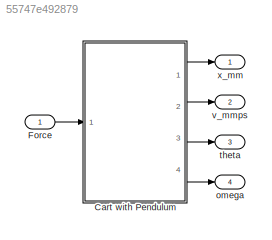
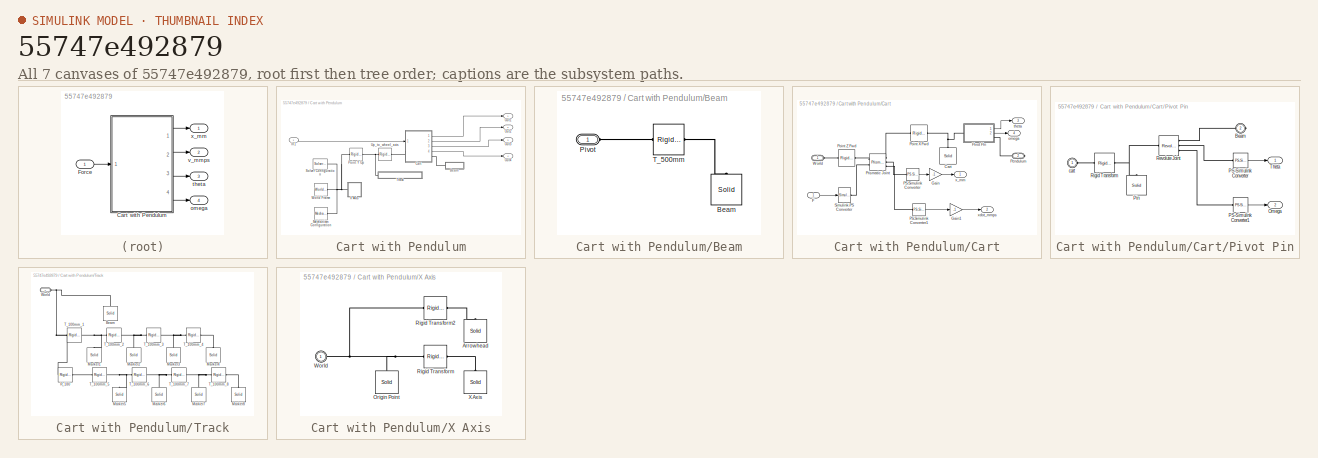
[diagram: thumbnail index - all 7 canvases of the model, root first then tree order]
MODEL slx_55747e492879
KIND model
CONFIG PreLoadFcn = Tend = 8
BLOCK [SubSystem] Cart with Pendulum
  Ports = [1, 4]
  RequestExecContextInheritance = off
BLOCK [SubSystem] Cart with Pendulum/Beam
  Ports = [0, 0, 0, 0, 0, 1]
  RequestExecContextInheritance = off
BLOCK [Reference] Cart with Pendulum/Beam/Beam  REF=sm_lib/Body Elements/Solid
  BlockFunction = simmechanics.library.body_elements.solid
  BrickDimensionUnits = mm
  BrickDimensions = [1000 20 50]
  CenterOfMass = [0 0 0]
  CenterOfMassUnits = m
  ClassName = Solid
  CylinderLength = 1
  CylinderLengthUnits = m
  CylinderRadius = 1
  CylinderRadiusUnits = m
  Density = 1000
  DensityBased = on
  DensityUnits = kg/(m^3)
  EllipsoidRadii = [1 1 1]
  EllipsoidRadiiUnits = m
  ExtGeomFileType = STL
  ExtGeomFileUnits = m
  ExtrusionCrossSection = [1 1; -1 1; -1 -1; 1 -1]
  ExtrusionCrossSectionUnits = m
  ExtrusionLength = 1
  ExtrusionLengthUnits = m
  GeometryShape = Brick
  GraphicAmbientColor = [0.15 0.15 0.15 1.0]
  GraphicDiffuseColor = [0.0 0.6 0.6]
  GraphicEmissiveColor = [0.0 0.0 0.0 1.0]
  GraphicOpacity = 1.0
  GraphicShininess = 75
  GraphicSpecularColor = [0.5 0.5 0.5 1.0]
  GraphicType = FromGeometry
  GraphicVisPropType = SimpleVisualProperties
  InertiaType = CalculateFromGeometry
  MarkerShape = Sphere
  MarkerSize = 10
  MarkerSizeUnits = m
  Mass = 1
  MassUnits = kg
  MomentsOfInertia = [1 1 1]
  MomentsOfInertiaUnits = kg*m^2
  PolygonNumSides = 3
  PolygonOuterRadius = 1
  PolygonOuterRadiusUnits = m
  Ports = [0, 0, 0, 0, 0, 0, 1]
  ProductsOfInertia = [0 0 0]
  ProductsOfInertiaUnits = kg*m^2
  RectangleSize = [1 1]
  RectangleSizeUnits = m
  RevolutionAngle = 180
  RevolutionAngleUnits = deg
  RevolutionCrossSection = [1 1; 1 -1; 2 -1; 2 1]
  RevolutionCrossSectionUnits = m
  RevolutionExtent = Full
  SourceBlock = sm_lib/Body Elements/Solid
  SourceType = Solid
  SphereRadius = 1
  SphereRadiusUnits = m
BLOCK [PMIOPort] Cart with Pendulum/Beam/Pivot
  Port = 1
  Side = Left
BLOCK [Reference] Cart with Pendulum/Beam/T_500mm  REF=sm_lib/Frames and
Transforms/Rigid
Transform
  BaseAlignAxisA = +Y
  BaseAlignAxisB = +Z
  BlockFunction = simmechanics.library.frames_transforms.rigid_transform
  ClassName = RigidTransform
  FollAlignAxisA = +X
  FollAlignAxisB = +Y
  Ports = [0, 0, 0, 0, 0, 1, 1]
  RotationAngle = 0
  RotationAngleUnits = deg
  RotationArbitraryAxis = [0 0 1]
  RotationMethod = None
  RotationStandardAxis = +Z
  SourceBlock = sm_lib/Frames and\nTransforms/Rigid\nTransform
  SourceType = Rigid\nTransform
  TranslationCartesianOffset = [0 0 0]
  TranslationLengthUnit = mm
  TranslationMethod = StandardAxis
  TranslationROffset = 0
  TranslationROffsetUnits = m
  TranslationStandardAxis = +X
  TranslationStandardOffset = 500
  TranslationThetaOffset = 0
  TranslationThetaOffsetUnits = deg
  TranslationZOffset = 0
  TranslationZOffsetUnits = m
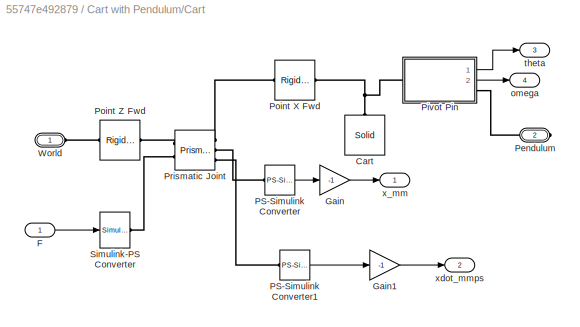
BLOCK [SubSystem] Cart with Pendulum/Cart
  Ports = [1, 4, 0, 0, 0, 1, 1]
  RequestExecContextInheritance = off
BLOCK [Reference] Cart with Pendulum/Cart/Cart  REF=sm_lib/Body Elements/Solid
  BlockFunction = simmechanics.library.body_elements.solid
  BrickDimensionUnits = mm
  BrickDimensions = [100 50 75]
  CenterOfMass = [0 0 0]
  CenterOfMassUnits = m
  ClassName = Solid
  CylinderLength = 40
  CylinderLengthUnits = mm
  CylinderRadius = 20
  CylinderRadiusUnits = mm
  Density = 1000
  DensityBased = on
  DensityUnits = kg/(m^3)
  EllipsoidRadii = [1 1 1]
  EllipsoidRadiiUnits = m
  ExtGeomFileType = STL
  ExtGeomFileUnits = m
  ExtrusionCrossSection = [1 1; -1 1; -1 -1; 1 -1]
  ExtrusionCrossSectionUnits = m
  ExtrusionLength = 1
  ExtrusionLengthUnits = m
  GeometryShape = Brick
  GraphicAmbientColor = [0.15 0.15 0.15 1.0]
  GraphicDiffuseColor = [0.5 0.5 0.5]
  GraphicEmissiveColor = [0.0 0.0 0.0 1.0]
  GraphicOpacity = 1.0
  GraphicShininess = 75
  GraphicSpecularColor = [0.5 0.5 0.5 1.0]
  GraphicType = FromGeometry
  GraphicVisPropType = SimpleVisualProperties
  InertiaType = CalculateFromGeometry
  MarkerShape = Sphere
  MarkerSize = 10
  MarkerSizeUnits = m
  Mass = 1
  MassUnits = kg
  MomentsOfInertia = [1 1 1]
  MomentsOfInertiaUnits = kg*m^2
  PolygonNumSides = 3
  PolygonOuterRadius = 1
  PolygonOuterRadiusUnits = m
  Ports = [0, 0, 0, 0, 0, 0, 1]
  ProductsOfInertia = [0 0 0]
  ProductsOfInertiaUnits = kg*m^2
  RectangleSize = [1 1]
  RectangleSizeUnits = m
  RevolutionAngle = 180
  RevolutionAngleUnits = deg
  RevolutionCrossSection = [1 1; 1 -1; 2 -1; 2 1]
  RevolutionCrossSectionUnits = m
  RevolutionExtent = Full
  SourceBlock = sm_lib/Body Elements/Solid
  SourceType = Solid
  SphereRadius = 1
  SphereRadiusUnits = m
BLOCK [Inport] Cart with Pendulum/Cart/F
  IconDisplay = Port number
BLOCK [Gain] Cart with Pendulum/Cart/Gain
  Gain = -1
  OutDataTypeStr = Inherit: Inherit via internal rule
  ParamDataTypeStr = Inherit: Inherit via internal rule
  SaturateOnIntegerOverflow = off
BLOCK [Gain] Cart with Pendulum/Cart/Gain1
  Gain = -1
  OutDataTypeStr = Inherit: Inherit via internal rule
  ParamDataTypeStr = Inherit: Inherit via internal rule
  SaturateOnIntegerOverflow = off
BLOCK [Reference] Cart with Pendulum/Cart/PS-Simulink Converter  REF=nesl_utility/PS-Simulink
Converter
  AffineConversion = off
  Frequencies = []
  LeftPortType = input
  PhysicalDomain = network_engine_domain
  Ports = [0, 1, 0, 0, 0, 1]
  PseudoPeriodic = off
  RightPortType = output
  SourceBlock = nesl_utility/PS-Simulink\nConverter
  SourceType = PS-Simulink\nConverter
  SubClassName = ps_output
  Unit = mm
BLOCK [Reference] Cart with Pendulum/Cart/PS-Simulink Converter1  REF=nesl_utility/PS-Simulink
Converter
  AffineConversion = off
  Frequencies = []
  LeftPortType = input
  PhysicalDomain = network_engine_domain
  Ports = [0, 1, 0, 0, 0, 1]
  PseudoPeriodic = off
  RightPortType = output
  SourceBlock = nesl_utility/PS-Simulink\nConverter
  SourceType = PS-Simulink\nConverter
  SubClassName = ps_output
  Unit = mm/s
BLOCK [PMIOPort] Cart with Pendulum/Cart/Pendulum
  Port = 2
  Side = Right
BLOCK [SubSystem] Cart with Pendulum/Cart/Pivot Pin
  Ports = [0, 2, 0, 0, 0, 1, 1]
  RequestExecContextInheritance = off
BLOCK [PMIOPort] Cart with Pendulum/Cart/Pivot Pin/Beam
  Port = 2
  Side = Right
BLOCK [Outport] Cart with Pendulum/Cart/Pivot Pin/Omega
  IconDisplay = Port number
  Port = 2
BLOCK [Reference] Cart with Pendulum/Cart/Pivot Pin/PS-Simulink Converter  REF=nesl_utility/PS-Simulink
Converter
  AffineConversion = off
  Frequencies = []
  LeftPortType = input
  PhysicalDomain = network_engine_domain
  Ports = [0, 1, 0, 0, 0, 1]
  PseudoPeriodic = off
  RightPortType = output
  SourceBlock = nesl_utility/PS-Simulink\nConverter
  SourceType = PS-Simulink\nConverter
  SubClassName = ps_output
  Unit = rad
BLOCK [Reference] Cart with Pendulum/Cart/Pivot Pin/PS-Simulink Converter1  REF=nesl_utility/PS-Simulink
Converter
  AffineConversion = off
  Frequencies = []
  LeftPortType = input
  PhysicalDomain = network_engine_domain
  Ports = [0, 1, 0, 0, 0, 1]
  PseudoPeriodic = off
  RightPortType = output
  SourceBlock = nesl_utility/PS-Simulink\nConverter
  SourceType = PS-Simulink\nConverter
  SubClassName = ps_output
  Unit = rad/s
BLOCK [Reference] Cart with Pendulum/Cart/Pivot Pin/Pin  REF=sm_lib/Body Elements/Solid
  BlockFunction = simmechanics.library.body_elements.solid
  BrickDimensionUnits = m
  BrickDimensions = [1 1 1]
  CenterOfMass = [0 0 0]
  CenterOfMassUnits = m
  ClassName = Solid
  CylinderLength = 100
  CylinderLengthUnits = mm
  CylinderRadius = 5
  CylinderRadiusUnits = mm
  Density = 1000
  DensityBased = on
  DensityUnits = kg/(m^3)
  EllipsoidRadii = [1 1 1]
  EllipsoidRadiiUnits = m
  ExtGeomFileName = D:\\\\\\\\\\\\\\\\\\\\\\\\\\\\\\\\\\\\\\\\\\\\\\\\\\\\\\\\\\\\\\\\\\\\\\\\\\\\\\\\\\\\\\\\\\\\\\\\\\\\\\\\\\\\\\\\\\\\\\\\\\\\\\\\\\\\\\\\\\\\\\\\\\\\\\\\\\\\\\\\\\\\\\\\\\\\\\\\\\\\\\\\\\\\\\\\\\\\\\\\\\\\\\\\\\\\\\\\\\\\\\\\\\\\\\\\\\\\\\\\\\\\\\\\\\\\\\\\\\\\\\\\\\\\\\\\\\\\\\\\\\\\\\\\\\\\\\\\\\\\\\\\\\\\\\\\\\\\\\\\\\\\\\\\\\\\\\\\\\\\\\\\\\\\\\\\\\\\\\\\\\\\\\\\\\\\\\\\\\\\\\\\\\\\\\\\\\\\\\...<+1681ch>
  ExtGeomFileType = STL
  ExtGeomFileUnits = mm
  ExtrusionCrossSection = [1 1; -1 1; -1 -1; 1 -1]
  ExtrusionCrossSectionUnits = m
  ExtrusionLength = 1
  ExtrusionLengthUnits = m
  GeometryShape = Cylinder
  GraphicAmbientColor = [0.15 0.15 0.15 1.0]
  GraphicDiffuseColor = [1.0 0.0 0.0]
  GraphicEmissiveColor = [0.0 0.0 0.0 1.0]
  GraphicOpacity = 1.0
  GraphicShininess = 75
  GraphicSpecularColor = [0.5 0.5 0.5 1.0]
  GraphicType = FromGeometry
  GraphicVisPropType = SimpleVisualProperties
  InertiaType = CalculateFromGeometry
  MarkerShape = Sphere
  MarkerSize = 10
  MarkerSizeUnits = m
  Mass = 1
  MassUnits = kg
  MomentsOfInertia = [1 1 1]
  MomentsOfInertiaUnits = kg*m^2
  PolygonNumSides = 3
  PolygonOuterRadius = 1
  PolygonOuterRadiusUnits = m
  Ports = [0, 0, 0, 0, 0, 0, 1]
  ProductsOfInertia = [0 0 0]
  ProductsOfInertiaUnits = kg*m^2
  RectangleSize = [1 1]
  RectangleSizeUnits = m
  RevolutionAngle = 180
  RevolutionAngleUnits = deg
  RevolutionCrossSection = [1 1; 1 -1; 2 -1; 2 1]
  RevolutionCrossSectionUnits = m
  RevolutionExtent = Full
  SourceBlock = sm_lib/Body Elements/Solid
  SourceType = Solid
  SphereRadius = 5
  SphereRadiusUnits = mm
BLOCK [Reference] Cart with Pendulum/Cart/Pivot Pin/Revolute Joint  REF=sm_lib/Joints/Revolute Joint
  BlockFunction = simmechanics.library.joints.revolute_joint
  ClassName = RevoluteJoint
  CompositeWrenchDir = FollowerOnBase
  CompositeWrenchFrame = BaseFrame
  DampingCoefficient = 0
  DampingCoefficientUnits = N*m/(deg/s)
  EquilibriumPosition = 0
  EquilibriumPositionUnits = deg
  MotionActuationMode = ComputedMotion
  Ports = [0, 0, 0, 0, 0, 1, 3]
  PositionTargetPriority = High
  PositionTargetSpecify = on
  PositionTargetValue = 85
  PositionTargetValueUnits = deg
  SenseAcceleration = off
  SenseConstraintForce = off
  SenseConstraintForceX = off
  SenseConstraintForceY = off
  SenseConstraintForceZ = off
  SenseConstraintTorque = off
  SenseConstraintTorqueX = off
  SenseConstraintTorqueY = off
  SenseConstraintTorqueZ = off
  SensePosition = on
  SenseTorqueForce = off
  SenseTotalForce = off
  SenseTotalForceX = off
  SenseTotalForceY = off
  SenseTotalForceZ = off
  SenseTotalTorque = off
  SenseTotalTorqueX = off
  SenseTotalTorqueY = off
  SenseTotalTorqueZ = off
  SenseVelocity = on
  SourceBlock = sm_lib/Joints/Revolute Joint
  SourceType = Revolute Joint
  SpringStiffness = 0
  SpringStiffnessUnits = N*m/deg
  TorqueActuationMode = NoTorque
  VelocityTargetPriority = High
  VelocityTargetSpecify = off
  VelocityTargetValue = 0
  VelocityTargetValueUnits = deg/s
BLOCK [Reference] Cart with Pendulum/Cart/Pivot Pin/Rigid Transform  REF=sm_lib/Frames and
Transforms/Rigid
Transform
  BaseAlignAxisA = +Y
  BaseAlignAxisB = +Z
  BlockFunction = simmechanics.library.frames_transforms.rigid_transform
  ClassName = RigidTransform
  FollAlignAxisA = +X
  FollAlignAxisB = +Y
  Ports = [0, 0, 0, 0, 0, 1, 1]
  RotationAngle = 90
  RotationAngleUnits = deg
  RotationArbitraryAxis = [0 0 1]
  RotationMethod = None
  RotationStandardAxis = +Y
  SourceBlock = sm_lib/Frames and\nTransforms/Rigid\nTransform
  SourceType = Rigid\nTransform
  TranslationCartesianOffset = [0 30 0]
  TranslationLengthUnit = mm
  TranslationMethod = Cartesian
  TranslationROffset = 0
  TranslationROffsetUnits = m
  TranslationStandardAxis = +X
  TranslationStandardOffset = 50
  TranslationThetaOffset = 0
  TranslationThetaOffsetUnits = deg
  TranslationZOffset = 0
  TranslationZOffsetUnits = m
BLOCK [Outport] Cart with Pendulum/Cart/Pivot Pin/Theta
  IconDisplay = Port number
BLOCK [PMIOPort] Cart with Pendulum/Cart/Pivot Pin/cart
  Port = 1
  Side = Left
BLOCK [Reference] Cart with Pendulum/Cart/Point X Fwd  REF=sm_lib/Frames and
Transforms/Rigid
Transform
  BaseAlignAxisA = +Y
  BaseAlignAxisB = +Z
  BlockFunction = simmechanics.library.frames_transforms.rigid_transform
  ClassName = RigidTransform
  FollAlignAxisA = +X
  FollAlignAxisB = +Y
  Ports = [0, 0, 0, 0, 0, 1, 1]
  RotationAngle = 90
  RotationAngleUnits = deg
  RotationArbitraryAxis = [0 0 1]
  RotationMethod = StandardAxis
  RotationStandardAxis = +Y
  SourceBlock = sm_lib/Frames and\nTransforms/Rigid\nTransform
  SourceType = Rigid\nTransform
  TranslationCartesianOffset = [0 30 0]
  TranslationLengthUnit = mm
  TranslationMethod = None
  TranslationROffset = 0
  TranslationROffsetUnits = m
  TranslationStandardAxis = +X
  TranslationStandardOffset = 50
  TranslationThetaOffset = 0
  TranslationThetaOffsetUnits = deg
  TranslationZOffset = 0
  TranslationZOffsetUnits = m
BLOCK [Reference] Cart with Pendulum/Cart/Point Z Fwd  REF=sm_lib/Frames and
Transforms/Rigid
Transform
  BaseAlignAxisA = +Y
  BaseAlignAxisB = +Z
  BlockFunction = simmechanics.library.frames_transforms.rigid_transform
  ClassName = RigidTransform
  FollAlignAxisA = +X
  FollAlignAxisB = +Y
  Ports = [0, 0, 0, 0, 0, 1, 1]
  RotationAngle = 90
  RotationAngleUnits = deg
  RotationArbitraryAxis = [0 0 1]
  RotationMethod = StandardAxis
  RotationStandardAxis = -Y
  SourceBlock = sm_lib/Frames and\nTransforms/Rigid\nTransform
  SourceType = Rigid\nTransform
  TranslationCartesianOffset = [0 30 0]
  TranslationLengthUnit = mm
  TranslationMethod = None
  TranslationROffset = 0
  TranslationROffsetUnits = m
  TranslationStandardAxis = +X
  TranslationStandardOffset = 50
  TranslationThetaOffset = 0
  TranslationThetaOffsetUnits = deg
  TranslationZOffset = 0
  TranslationZOffsetUnits = m
BLOCK [Reference] Cart with Pendulum/Cart/Prismatic Joint  REF=sm_lib/Joints/Prismatic
Joint
  BlockFunction = simmechanics.library.joints.prismatic_joint
  ClassName = PrismaticJoint
  CompositeWrenchDir = FollowerOnBase
  CompositeWrenchFrame = BaseFrame
  DampingCoefficient = 0
  DampingCoefficientUnits = N/(m/s)
  EquilibriumPosition = 0
  EquilibriumPositionUnits = m
  MotionActuationMode = ComputedMotion
  Ports = [0, 0, 0, 0, 0, 2, 3]
  PositionTargetPriority = High
  PositionTargetSpecify = off
  PositionTargetValue = 0
  PositionTargetValueUnits = m
  SenseAcceleration = off
  SenseConstraintForce = off
  SenseConstraintForceX = off
  SenseConstraintForceY = off
  SenseConstraintForceZ = off
  SenseConstraintTorque = off
  SenseConstraintTorqueX = off
  SenseConstraintTorqueY = off
  SenseConstraintTorqueZ = off
  SensePosition = on
  SenseTorqueForce = off
  SenseTotalForce = off
  SenseTotalForceX = off
  SenseTotalForceY = off
  SenseTotalForceZ = off
  SenseTotalTorque = off
  SenseTotalTorqueX = off
  SenseTotalTorqueY = off
  SenseTotalTorqueZ = off
  SenseVelocity = on
  SourceBlock = sm_lib/Joints/Prismatic\nJoint
  SourceType = Prismatic\nJoint
  SpringStiffness = 0
  SpringStiffnessUnits = N/m
  TorqueActuationMode = InputTorque
  VelocityTargetPriority = High
  VelocityTargetSpecify = off
  VelocityTargetValue = 0
  VelocityTargetValueUnits = m/s
BLOCK [Reference] Cart with Pendulum/Cart/Simulink-PS Converter  REF=nesl_utility/Simulink-PS
Converter
  AffineConversion = off
  Frequencies = []
  InputFilterTimeConstant = .001
  InputFiltering = off
  LeftPortType = input
  NoiseDistribution = none
  NoiseParameters = []
  PhysicalDomain = network_engine_domain
  Ports = [1, 0, 0, 0, 0, 0, 1]
  PseudoPeriodic = off
  RightPortType = output
  SimscapeFilterOrder = 1
  SourceBlock = nesl_utility/Simulink-PS\nConverter
  SourceType = Simulink-PS\nConverter
  SubClassName = ps_input
  UdotUserProvided = 1
  Unit = N
BLOCK [PMIOPort] Cart with Pendulum/Cart/World
  Port = 1
  Side = Left
BLOCK [Outport] Cart with Pendulum/Cart/omega
  IconDisplay = Port number
  Port = 4
BLOCK [Outport] Cart with Pendulum/Cart/theta
  IconDisplay = Port number
  Port = 3
BLOCK [Outport] Cart with Pendulum/Cart/x_mm
  IconDisplay = Port number
BLOCK [Outport] Cart with Pendulum/Cart/xdot_mmps
  IconDisplay = Port number
  Port = 2
BLOCK [Inport] Cart with Pendulum/In1
  IconDisplay = Port number
BLOCK [Reference] Cart with Pendulum/Mechanism Configuration  REF=sm_lib/Utilities/Mechanism
Configuration
  BlockFunction = simmechanics.library.utilities.mechanism_configuration
  ClassName = MechanismConfiguration
  GravityUnits = m/s^2
  GravityVector = [0 0 -9.81]
  LinearizationDelta = 0.001
  Ports = [0, 0, 0, 0, 0, 0, 1]
  SourceBlock = sm_lib/Utilities/Mechanism\nConfiguration
  SourceType = Mechanism\nConfiguration
  UniformGravity = Constant
BLOCK [Outport] Cart with Pendulum/Out1
  IconDisplay = Port number
BLOCK [Outport] Cart with Pendulum/Out2
  IconDisplay = Port number
  Port = 2
BLOCK [Outport] Cart with Pendulum/Out3
  IconDisplay = Port number
  Port = 3
BLOCK [Outport] Cart with Pendulum/Out4
  IconDisplay = Port number
  Port = 4
BLOCK [Reference] Cart with Pendulum/Point Y Up  REF=sm_lib/Frames and
Transforms/Rigid
Transform
  BaseAlignAxisA = +Y
  BaseAlignAxisB = +Z
  BlockFunction = simmechanics.library.frames_transforms.rigid_transform
  ClassName = RigidTransform
  FollAlignAxisA = +X
  FollAlignAxisB = +Y
  Ports = [0, 0, 0, 0, 0, 1, 1]
  RotationAngle = 90
  RotationAngleUnits = deg
  RotationArbitraryAxis = [0 0 1]
  RotationMethod = StandardAxis
  RotationStandardAxis = +X
  SourceBlock = sm_lib/Frames and\nTransforms/Rigid\nTransform
  SourceType = Rigid\nTransform
  TranslationCartesianOffset = [0 0 0]
  TranslationLengthUnit = m
  TranslationMethod = None
  TranslationROffset = 0
  TranslationROffsetUnits = m
  TranslationStandardAxis = +Z
  TranslationStandardOffset = 0
  TranslationThetaOffset = 0
  TranslationThetaOffsetUnits = deg
  TranslationZOffset = 0
  TranslationZOffsetUnits = m
BLOCK [Reference] Cart with Pendulum/Solver Configuration  REF=nesl_utility/Solver
Configuration
  AbsTol = 1e-06
  Accelerate = off
  AutomaticFiltering = on
  DelaysMemoryBudget = 1024
  DoDC = off
  DoFixedCost = off
  EnableSwitchedLinearOptims = on
  FilteringTimeConstant = 0.001
  FrequencyDomain = off
  Harmonics = []
  LeftPortType = input
  LinearAlgebra = Sparse
  LocalSolverChoice = NE_BACKWARD_EULER_ADVANCER
  LocalSolverSampleTime = .001
  MaxModeIter = 2
  MaxNonlinIter = 3
  MinStep = 1e-09
  PhysicalDomain = network_engine_domain
  Ports = [0, 0, 0, 0, 0, 0, 1]
  Profile = off
  RelTol = 0.001
  ResidualTolerance = 1e-9
  RightPortType = generic
  SimulateNoise = off
  SourceBlock = nesl_utility/Solver\nConfiguration
  SourceType = Solver\nConfiguration
  SubClassName = solver
  ToWorkspace = off
  Tones = []
  UseCCode = off
  UseLocalSampling = off
  UseLocalSolver = off
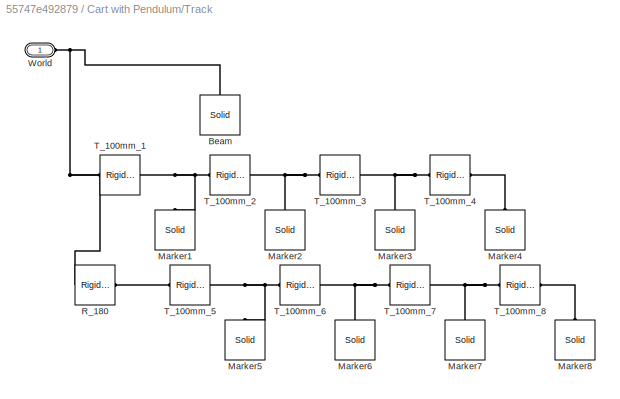
BLOCK [SubSystem] Cart with Pendulum/Track
  Ports = [0, 0, 0, 0, 0, 1]
  RequestExecContextInheritance = off
BLOCK [Reference] Cart with Pendulum/Track/Beam  REF=sm_lib/Body Elements/Solid
  BlockFunction = simmechanics.library.body_elements.solid
  BrickDimensionUnits = mm
  BrickDimensions = [1000 20 50]
  CenterOfMass = [0 0 0]
  CenterOfMassUnits = m
  ClassName = Solid
  CylinderLength = 1
  CylinderLengthUnits = m
  CylinderRadius = 1
  CylinderRadiusUnits = m
  Density = 1000
  DensityBased = on
  DensityUnits = kg/(m^3)
  EllipsoidRadii = [1 1 1]
  EllipsoidRadiiUnits = m
  ExtGeomFileType = STL
  ExtGeomFileUnits = m
  ExtrusionCrossSection = [1 1; -1 1; -1 -1; 1 -1]
  ExtrusionCrossSectionUnits = m
  ExtrusionLength = 1
  ExtrusionLengthUnits = m
  GeometryShape = Brick
  GraphicAmbientColor = [0.15 0.15 0.15 1.0]
  GraphicDiffuseColor = [0.7176471 0.7254902 0.72156864]
  GraphicEmissiveColor = [0.0 0.0 0.0 1.0]
  GraphicOpacity = 1.0
  GraphicShininess = 75
  GraphicSpecularColor = [0.5 0.5 0.5 1.0]
  GraphicType = FromGeometry
  GraphicVisPropType = SimpleVisualProperties
  InertiaType = CalculateFromGeometry
  MarkerShape = Sphere
  MarkerSize = 10
  MarkerSizeUnits = m
  Mass = 1
  MassUnits = kg
  MomentsOfInertia = [1 1 1]
  MomentsOfInertiaUnits = kg*m^2
  PolygonNumSides = 3
  PolygonOuterRadius = 1
  PolygonOuterRadiusUnits = m
  Ports = [0, 0, 0, 0, 0, 0, 1]
  ProductsOfInertia = [0 0 0]
  ProductsOfInertiaUnits = kg*m^2
  RectangleSize = [1 1]
  RectangleSizeUnits = m
  RevolutionAngle = 180
  RevolutionAngleUnits = deg
  RevolutionCrossSection = [1 1; 1 -1; 2 -1; 2 1]
  RevolutionCrossSectionUnits = m
  RevolutionExtent = Full
  SourceBlock = sm_lib/Body Elements/Solid
  SourceType = Solid
  SphereRadius = 1
  SphereRadiusUnits = m
BLOCK [Reference] Cart with Pendulum/Track/Marker1  REF=sm_lib/Body Elements/Solid
  BlockFunction = simmechanics.library.body_elements.solid
  BrickDimensionUnits = m
  BrickDimensions = [1 1 1]
  CenterOfMass = [0 0 0]
  CenterOfMassUnits = m
  ClassName = Solid
  CylinderLength = 100
  CylinderLengthUnits = mm
  CylinderRadius = 2
  CylinderRadiusUnits = mm
  Density = 1000
  DensityBased = on
  DensityUnits = kg/(m^3)
  EllipsoidRadii = [1 1 1]
  EllipsoidRadiiUnits = m
  ExtGeomFileType = STL
  ExtGeomFileUnits = m
  ExtrusionCrossSection = [1 1; -1 1; -1 -1; 1 -1]
  ExtrusionCrossSectionUnits = m
  ExtrusionLength = 1
  ExtrusionLengthUnits = m
  GeometryShape = Cylinder
  GraphicAmbientColor = [0.15 0.15 0.15 1.0]
  GraphicDiffuseColor = [0.0 0.0 1.0]
  GraphicEmissiveColor = [0.0 0.0 0.0 1.0]
  GraphicOpacity = 1.0
  GraphicShininess = 75
  GraphicSpecularColor = [0.5 0.5 0.5 1.0]
  GraphicType = FromGeometry
  GraphicVisPropType = SimpleVisualProperties
  InertiaType = PointMass
  MarkerShape = Sphere
  MarkerSize = 10
  MarkerSizeUnits = m
  Mass = 1
  MassUnits = g
  MomentsOfInertia = [1 1 1]
  MomentsOfInertiaUnits = kg*m^2
  PolygonNumSides = 3
  PolygonOuterRadius = 1
  PolygonOuterRadiusUnits = m
  Ports = [0, 0, 0, 0, 0, 0, 1]
  ProductsOfInertia = [0 0 0]
  ProductsOfInertiaUnits = kg*m^2
  RectangleSize = [1 1]
  RectangleSizeUnits = m
  RevolutionAngle = 180
  RevolutionAngleUnits = deg
  RevolutionCrossSection = [1 1; 1 -1; 2 -1; 2 1]
  RevolutionCrossSectionUnits = m
  RevolutionExtent = Full
  SourceBlock = sm_lib/Body Elements/Solid
  SourceType = Solid
  SphereRadius = 1
  SphereRadiusUnits = m
BLOCK [Reference] Cart with Pendulum/Track/Marker2  REF=sm_lib/Body Elements/Solid
  BlockFunction = simmechanics.library.body_elements.solid
  BrickDimensionUnits = m
  BrickDimensions = [1 1 1]
  CenterOfMass = [0 0 0]
  CenterOfMassUnits = m
  ClassName = Solid
  CylinderLength = 100
  CylinderLengthUnits = mm
  CylinderRadius = 2
  CylinderRadiusUnits = mm
  Density = 1000
  DensityBased = on
  DensityUnits = kg/(m^3)
  EllipsoidRadii = [1 1 1]
  EllipsoidRadiiUnits = m
  ExtGeomFileType = STL
  ExtGeomFileUnits = m
  ExtrusionCrossSection = [1 1; -1 1; -1 -1; 1 -1]
  ExtrusionCrossSectionUnits = m
  ExtrusionLength = 1
  ExtrusionLengthUnits = m
  GeometryShape = Cylinder
  GraphicAmbientColor = [0.15 0.15 0.15 1.0]
  GraphicDiffuseColor = [0.0 0.0 1.0]
  GraphicEmissiveColor = [0.0 0.0 0.0 1.0]
  GraphicOpacity = 1.0
  GraphicShininess = 75
  GraphicSpecularColor = [0.5 0.5 0.5 1.0]
  GraphicType = FromGeometry
  GraphicVisPropType = SimpleVisualProperties
  InertiaType = PointMass
  MarkerShape = Sphere
  MarkerSize = 10
  MarkerSizeUnits = m
  Mass = 1
  MassUnits = g
  MomentsOfInertia = [1 1 1]
  MomentsOfInertiaUnits = kg*m^2
  PolygonNumSides = 3
  PolygonOuterRadius = 1
  PolygonOuterRadiusUnits = m
  Ports = [0, 0, 0, 0, 0, 0, 1]
  ProductsOfInertia = [0 0 0]
  ProductsOfInertiaUnits = kg*m^2
  RectangleSize = [1 1]
  RectangleSizeUnits = m
  RevolutionAngle = 180
  RevolutionAngleUnits = deg
  RevolutionCrossSection = [1 1; 1 -1; 2 -1; 2 1]
  RevolutionCrossSectionUnits = m
  RevolutionExtent = Full
  SourceBlock = sm_lib/Body Elements/Solid
  SourceType = Solid
  SphereRadius = 1
  SphereRadiusUnits = m
BLOCK [Reference] Cart with Pendulum/Track/Marker3  REF=sm_lib/Body Elements/Solid
  BlockFunction = simmechanics.library.body_elements.solid
  BrickDimensionUnits = m
  BrickDimensions = [1 1 1]
  CenterOfMass = [0 0 0]
  CenterOfMassUnits = m
  ClassName = Solid
  CylinderLength = 100
  CylinderLengthUnits = mm
  CylinderRadius = 2
  CylinderRadiusUnits = mm
  Density = 1000
  DensityBased = on
  DensityUnits = kg/(m^3)
  EllipsoidRadii = [1 1 1]
  EllipsoidRadiiUnits = m
  ExtGeomFileType = STL
  ExtGeomFileUnits = m
  ExtrusionCrossSection = [1 1; -1 1; -1 -1; 1 -1]
  ExtrusionCrossSectionUnits = m
  ExtrusionLength = 1
  ExtrusionLengthUnits = m
  GeometryShape = Cylinder
  GraphicAmbientColor = [0.15 0.15 0.15 1.0]
  GraphicDiffuseColor = [0.0 0.0 1.0]
  GraphicEmissiveColor = [0.0 0.0 0.0 1.0]
  GraphicOpacity = 1.0
  GraphicShininess = 75
  GraphicSpecularColor = [0.5 0.5 0.5 1.0]
  GraphicType = FromGeometry
  GraphicVisPropType = SimpleVisualProperties
  InertiaType = PointMass
  MarkerShape = Sphere
  MarkerSize = 10
  MarkerSizeUnits = m
  Mass = 1
  MassUnits = g
  MomentsOfInertia = [1 1 1]
  MomentsOfInertiaUnits = kg*m^2
  PolygonNumSides = 3
  PolygonOuterRadius = 1
  PolygonOuterRadiusUnits = m
  Ports = [0, 0, 0, 0, 0, 0, 1]
  ProductsOfInertia = [0 0 0]
  ProductsOfInertiaUnits = kg*m^2
  RectangleSize = [1 1]
  RectangleSizeUnits = m
  RevolutionAngle = 180
  RevolutionAngleUnits = deg
  RevolutionCrossSection = [1 1; 1 -1; 2 -1; 2 1]
  RevolutionCrossSectionUnits = m
  RevolutionExtent = Full
  SourceBlock = sm_lib/Body Elements/Solid
  SourceType = Solid
  SphereRadius = 1
  SphereRadiusUnits = m
BLOCK [Reference] Cart with Pendulum/Track/Marker4  REF=sm_lib/Body Elements/Solid
  BlockFunction = simmechanics.library.body_elements.solid
  BrickDimensionUnits = m
  BrickDimensions = [1 1 1]
  CenterOfMass = [0 0 0]
  CenterOfMassUnits = m
  ClassName = Solid
  CylinderLength = 100
  CylinderLengthUnits = mm
  CylinderRadius = 2
  CylinderRadiusUnits = mm
  Density = 1000
  DensityBased = on
  DensityUnits = kg/(m^3)
  EllipsoidRadii = [1 1 1]
  EllipsoidRadiiUnits = m
  ExtGeomFileType = STL
  ExtGeomFileUnits = m
  ExtrusionCrossSection = [1 1; -1 1; -1 -1; 1 -1]
  ExtrusionCrossSectionUnits = m
  ExtrusionLength = 1
  ExtrusionLengthUnits = m
  GeometryShape = Cylinder
  GraphicAmbientColor = [0.15 0.15 0.15 1.0]
  GraphicDiffuseColor = [0.0 0.0 1.0]
  GraphicEmissiveColor = [0.0 0.0 0.0 1.0]
  GraphicOpacity = 1.0
  GraphicShininess = 75
  GraphicSpecularColor = [0.5 0.5 0.5 1.0]
  GraphicType = FromGeometry
  GraphicVisPropType = SimpleVisualProperties
  InertiaType = PointMass
  MarkerShape = Sphere
  MarkerSize = 10
  MarkerSizeUnits = m
  Mass = 1
  MassUnits = g
  MomentsOfInertia = [1 1 1]
  MomentsOfInertiaUnits = kg*m^2
  PolygonNumSides = 3
  PolygonOuterRadius = 1
  PolygonOuterRadiusUnits = m
  Ports = [0, 0, 0, 0, 0, 0, 1]
  ProductsOfInertia = [0 0 0]
  ProductsOfInertiaUnits = kg*m^2
  RectangleSize = [1 1]
  RectangleSizeUnits = m
  RevolutionAngle = 180
  RevolutionAngleUnits = deg
  RevolutionCrossSection = [1 1; 1 -1; 2 -1; 2 1]
  RevolutionCrossSectionUnits = m
  RevolutionExtent = Full
  SourceBlock = sm_lib/Body Elements/Solid
  SourceType = Solid
  SphereRadius = 1
  SphereRadiusUnits = m
BLOCK [Reference] Cart with Pendulum/Track/Marker5  REF=sm_lib/Body Elements/Solid
  BlockFunction = simmechanics.library.body_elements.solid
  BrickDimensionUnits = m
  BrickDimensions = [1 1 1]
  CenterOfMass = [0 0 0]
  CenterOfMassUnits = m
  ClassName = Solid
  CylinderLength = 100
  CylinderLengthUnits = mm
  CylinderRadius = 2
  CylinderRadiusUnits = mm
  Density = 1000
  DensityBased = on
  DensityUnits = kg/(m^3)
  EllipsoidRadii = [1 1 1]
  EllipsoidRadiiUnits = m
  ExtGeomFileType = STL
  ExtGeomFileUnits = m
  ExtrusionCrossSection = [1 1; -1 1; -1 -1; 1 -1]
  ExtrusionCrossSectionUnits = m
  ExtrusionLength = 1
  ExtrusionLengthUnits = m
  GeometryShape = Cylinder
  GraphicAmbientColor = [0.15 0.15 0.15 1.0]
  GraphicDiffuseColor = [1.0 0.0 0.0]
  GraphicEmissiveColor = [0.0 0.0 0.0 1.0]
  GraphicOpacity = 1.0
  GraphicShininess = 75
  GraphicSpecularColor = [0.5 0.5 0.5 1.0]
  GraphicType = FromGeometry
  GraphicVisPropType = SimpleVisualProperties
  InertiaType = PointMass
  MarkerShape = Sphere
  MarkerSize = 10
  MarkerSizeUnits = m
  Mass = 1
  MassUnits = g
  MomentsOfInertia = [1 1 1]
  MomentsOfInertiaUnits = kg*m^2
  PolygonNumSides = 3
  PolygonOuterRadius = 1
  PolygonOuterRadiusUnits = m
  Ports = [0, 0, 0, 0, 0, 0, 1]
  ProductsOfInertia = [0 0 0]
  ProductsOfInertiaUnits = kg*m^2
  RectangleSize = [1 1]
  RectangleSizeUnits = m
  RevolutionAngle = 180
  RevolutionAngleUnits = deg
  RevolutionCrossSection = [1 1; 1 -1; 2 -1; 2 1]
  RevolutionCrossSectionUnits = m
  RevolutionExtent = Full
  SourceBlock = sm_lib/Body Elements/Solid
  SourceType = Solid
  SphereRadius = 1
  SphereRadiusUnits = m
BLOCK [Reference] Cart with Pendulum/Track/Marker6  REF=sm_lib/Body Elements/Solid
  BlockFunction = simmechanics.library.body_elements.solid
  BrickDimensionUnits = m
  BrickDimensions = [1 1 1]
  CenterOfMass = [0 0 0]
  CenterOfMassUnits = m
  ClassName = Solid
  CylinderLength = 100
  CylinderLengthUnits = mm
  CylinderRadius = 2
  CylinderRadiusUnits = mm
  Density = 1000
  DensityBased = on
  DensityUnits = kg/(m^3)
  EllipsoidRadii = [1 1 1]
  EllipsoidRadiiUnits = m
  ExtGeomFileType = STL
  ExtGeomFileUnits = m
  ExtrusionCrossSection = [1 1; -1 1; -1 -1; 1 -1]
  ExtrusionCrossSectionUnits = m
  ExtrusionLength = 1
  ExtrusionLengthUnits = m
  GeometryShape = Cylinder
  GraphicAmbientColor = [0.15 0.15 0.15 1.0]
  GraphicDiffuseColor = [1.0 0.0 0.0]
  GraphicEmissiveColor = [0.0 0.0 0.0 1.0]
  GraphicOpacity = 1.0
  GraphicShininess = 75
  GraphicSpecularColor = [0.5 0.5 0.5 1.0]
  GraphicType = FromGeometry
  GraphicVisPropType = SimpleVisualProperties
  InertiaType = PointMass
  MarkerShape = Sphere
  MarkerSize = 10
  MarkerSizeUnits = m
  Mass = 1
  MassUnits = g
  MomentsOfInertia = [1 1 1]
  MomentsOfInertiaUnits = kg*m^2
  PolygonNumSides = 3
  PolygonOuterRadius = 1
  PolygonOuterRadiusUnits = m
  Ports = [0, 0, 0, 0, 0, 0, 1]
  ProductsOfInertia = [0 0 0]
  ProductsOfInertiaUnits = kg*m^2
  RectangleSize = [1 1]
  RectangleSizeUnits = m
  RevolutionAngle = 180
  RevolutionAngleUnits = deg
  RevolutionCrossSection = [1 1; 1 -1; 2 -1; 2 1]
  RevolutionCrossSectionUnits = m
  RevolutionExtent = Full
  SourceBlock = sm_lib/Body Elements/Solid
  SourceType = Solid
  SphereRadius = 1
  SphereRadiusUnits = m
BLOCK [Reference] Cart with Pendulum/Track/Marker7  REF=sm_lib/Body Elements/Solid
  BlockFunction = simmechanics.library.body_elements.solid
  BrickDimensionUnits = m
  BrickDimensions = [1 1 1]
  CenterOfMass = [0 0 0]
  CenterOfMassUnits = m
  ClassName = Solid
  CylinderLength = 100
  CylinderLengthUnits = mm
  CylinderRadius = 2
  CylinderRadiusUnits = mm
  Density = 1000
  DensityBased = on
  DensityUnits = kg/(m^3)
  EllipsoidRadii = [1 1 1]
  EllipsoidRadiiUnits = m
  ExtGeomFileType = STL
  ExtGeomFileUnits = m
  ExtrusionCrossSection = [1 1; -1 1; -1 -1; 1 -1]
  ExtrusionCrossSectionUnits = m
  ExtrusionLength = 1
  ExtrusionLengthUnits = m
  GeometryShape = Cylinder
  GraphicAmbientColor = [0.15 0.15 0.15 1.0]
  GraphicDiffuseColor = [1.0 0.0 0.0]
  GraphicEmissiveColor = [0.0 0.0 0.0 1.0]
  GraphicOpacity = 1.0
  GraphicShininess = 75
  GraphicSpecularColor = [0.5 0.5 0.5 1.0]
  GraphicType = FromGeometry
  GraphicVisPropType = SimpleVisualProperties
  InertiaType = PointMass
  MarkerShape = Sphere
  MarkerSize = 10
  MarkerSizeUnits = m
  Mass = 1
  MassUnits = g
  MomentsOfInertia = [1 1 1]
  MomentsOfInertiaUnits = kg*m^2
  PolygonNumSides = 3
  PolygonOuterRadius = 1
  PolygonOuterRadiusUnits = m
  Ports = [0, 0, 0, 0, 0, 0, 1]
  ProductsOfInertia = [0 0 0]
  ProductsOfInertiaUnits = kg*m^2
  RectangleSize = [1 1]
  RectangleSizeUnits = m
  RevolutionAngle = 180
  RevolutionAngleUnits = deg
  RevolutionCrossSection = [1 1; 1 -1; 2 -1; 2 1]
  RevolutionCrossSectionUnits = m
  RevolutionExtent = Full
  SourceBlock = sm_lib/Body Elements/Solid
  SourceType = Solid
  SphereRadius = 1
  SphereRadiusUnits = m
BLOCK [Reference] Cart with Pendulum/Track/Marker8  REF=sm_lib/Body Elements/Solid
  BlockFunction = simmechanics.library.body_elements.solid
  BrickDimensionUnits = m
  BrickDimensions = [1 1 1]
  CenterOfMass = [0 0 0]
  CenterOfMassUnits = m
  ClassName = Solid
  CylinderLength = 100
  CylinderLengthUnits = mm
  CylinderRadius = 2
  CylinderRadiusUnits = mm
  Density = 1000
  DensityBased = on
  DensityUnits = kg/(m^3)
  EllipsoidRadii = [1 1 1]
  EllipsoidRadiiUnits = m
  ExtGeomFileType = STL
  ExtGeomFileUnits = m
  ExtrusionCrossSection = [1 1; -1 1; -1 -1; 1 -1]
  ExtrusionCrossSectionUnits = m
  ExtrusionLength = 1
  ExtrusionLengthUnits = m
  GeometryShape = Cylinder
  GraphicAmbientColor = [0.15 0.15 0.15 1.0]
  GraphicDiffuseColor = [1.0 0.0 0.0]
  GraphicEmissiveColor = [0.0 0.0 0.0 1.0]
  GraphicOpacity = 1.0
  GraphicShininess = 75
  GraphicSpecularColor = [0.5 0.5 0.5 1.0]
  GraphicType = FromGeometry
  GraphicVisPropType = SimpleVisualProperties
  InertiaType = PointMass
  MarkerShape = Sphere
  MarkerSize = 10
  MarkerSizeUnits = m
  Mass = 1
  MassUnits = g
  MomentsOfInertia = [1 1 1]
  MomentsOfInertiaUnits = kg*m^2
  PolygonNumSides = 3
  PolygonOuterRadius = 1
  PolygonOuterRadiusUnits = m
  Ports = [0, 0, 0, 0, 0, 0, 1]
  ProductsOfInertia = [0 0 0]
  ProductsOfInertiaUnits = kg*m^2
  RectangleSize = [1 1]
  RectangleSizeUnits = m
  RevolutionAngle = 180
  RevolutionAngleUnits = deg
  RevolutionCrossSection = [1 1; 1 -1; 2 -1; 2 1]
  RevolutionCrossSectionUnits = m
  RevolutionExtent = Full
  SourceBlock = sm_lib/Body Elements/Solid
  SourceType = Solid
  SphereRadius = 1
  SphereRadiusUnits = m
BLOCK [Reference] Cart with Pendulum/Track/R_180  REF=sm_lib/Frames and
Transforms/Rigid
Transform
  BaseAlignAxisA = +Y
  BaseAlignAxisB = +Z
  BlockFunction = simmechanics.library.frames_transforms.rigid_transform
  ClassName = RigidTransform
  FollAlignAxisA = +X
  FollAlignAxisB = +Y
  Ports = [0, 0, 0, 0, 0, 1, 1]
  RotationAngle = 180
  RotationAngleUnits = deg
  RotationArbitraryAxis = [0 0 1]
  RotationMethod = StandardAxis
  RotationStandardAxis = +Y
  SourceBlock = sm_lib/Frames and\nTransforms/Rigid\nTransform
  SourceType = Rigid\nTransform
  TranslationCartesianOffset = [0 0 0]
  TranslationLengthUnit = mm
  TranslationMethod = None
  TranslationROffset = 0
  TranslationROffsetUnits = m
  TranslationStandardAxis = +X
  TranslationStandardOffset = 100
  TranslationThetaOffset = 0
  TranslationThetaOffsetUnits = deg
  TranslationZOffset = 0
  TranslationZOffsetUnits = m
BLOCK [Reference] Cart with Pendulum/Track/T_100mm_1  REF=sm_lib/Frames and
Transforms/Rigid
Transform
  BaseAlignAxisA = +Y
  BaseAlignAxisB = +Z
  BlockFunction = simmechanics.library.frames_transforms.rigid_transform
  ClassName = RigidTransform
  FollAlignAxisA = +X
  FollAlignAxisB = +Y
  Ports = [0, 0, 0, 0, 0, 1, 1]
  RotationAngle = 0
  RotationAngleUnits = deg
  RotationArbitraryAxis = [0 0 1]
  RotationMethod = None
  RotationStandardAxis = +Z
  SourceBlock = sm_lib/Frames and\nTransforms/Rigid\nTransform
  SourceType = Rigid\nTransform
  TranslationCartesianOffset = [0 0 0]
  TranslationLengthUnit = mm
  TranslationMethod = StandardAxis
  TranslationROffset = 0
  TranslationROffsetUnits = m
  TranslationStandardAxis = +X
  TranslationStandardOffset = 100
  TranslationThetaOffset = 0
  TranslationThetaOffsetUnits = deg
  TranslationZOffset = 0
  TranslationZOffsetUnits = m
BLOCK [Reference] Cart with Pendulum/Track/T_100mm_2  REF=sm_lib/Frames and
Transforms/Rigid
Transform
  BaseAlignAxisA = +Y
  BaseAlignAxisB = +Z
  BlockFunction = simmechanics.library.frames_transforms.rigid_transform
  ClassName = RigidTransform
  FollAlignAxisA = +X
  FollAlignAxisB = +Y
  Ports = [0, 0, 0, 0, 0, 1, 1]
  RotationAngle = 0
  RotationAngleUnits = deg
  RotationArbitraryAxis = [0 0 1]
  RotationMethod = None
  RotationStandardAxis = +Z
  SourceBlock = sm_lib/Frames and\nTransforms/Rigid\nTransform
  SourceType = Rigid\nTransform
  TranslationCartesianOffset = [0 0 0]
  TranslationLengthUnit = mm
  TranslationMethod = StandardAxis
  TranslationROffset = 0
  TranslationROffsetUnits = m
  TranslationStandardAxis = +X
  TranslationStandardOffset = 100
  TranslationThetaOffset = 0
  TranslationThetaOffsetUnits = deg
  TranslationZOffset = 0
  TranslationZOffsetUnits = m
BLOCK [Reference] Cart with Pendulum/Track/T_100mm_3  REF=sm_lib/Frames and
Transforms/Rigid
Transform
  BaseAlignAxisA = +Y
  BaseAlignAxisB = +Z
  BlockFunction = simmechanics.library.frames_transforms.rigid_transform
  ClassName = RigidTransform
  FollAlignAxisA = +X
  FollAlignAxisB = +Y
  Ports = [0, 0, 0, 0, 0, 1, 1]
  RotationAngle = 0
  RotationAngleUnits = deg
  RotationArbitraryAxis = [0 0 1]
  RotationMethod = None
  RotationStandardAxis = +Z
  SourceBlock = sm_lib/Frames and\nTransforms/Rigid\nTransform
  SourceType = Rigid\nTransform
  TranslationCartesianOffset = [0 0 0]
  TranslationLengthUnit = mm
  TranslationMethod = StandardAxis
  TranslationROffset = 0
  TranslationROffsetUnits = m
  TranslationStandardAxis = +X
  TranslationStandardOffset = 100
  TranslationThetaOffset = 0
  TranslationThetaOffsetUnits = deg
  TranslationZOffset = 0
  TranslationZOffsetUnits = m
BLOCK [Reference] Cart with Pendulum/Track/T_100mm_4  REF=sm_lib/Frames and
Transforms/Rigid
Transform
  BaseAlignAxisA = +Y
  BaseAlignAxisB = +Z
  BlockFunction = simmechanics.library.frames_transforms.rigid_transform
  ClassName = RigidTransform
  FollAlignAxisA = +X
  FollAlignAxisB = +Y
  Ports = [0, 0, 0, 0, 0, 1, 1]
  RotationAngle = 0
  RotationAngleUnits = deg
  RotationArbitraryAxis = [0 0 1]
  RotationMethod = None
  RotationStandardAxis = +Z
  SourceBlock = sm_lib/Frames and\nTransforms/Rigid\nTransform
  SourceType = Rigid\nTransform
  TranslationCartesianOffset = [0 0 0]
  TranslationLengthUnit = mm
  TranslationMethod = StandardAxis
  TranslationROffset = 0
  TranslationROffsetUnits = m
  TranslationStandardAxis = +X
  TranslationStandardOffset = 100
  TranslationThetaOffset = 0
  TranslationThetaOffsetUnits = deg
  TranslationZOffset = 0
  TranslationZOffsetUnits = m
BLOCK [Reference] Cart with Pendulum/Track/T_100mm_5  REF=sm_lib/Frames and
Transforms/Rigid
Transform
  BaseAlignAxisA = +Y
  BaseAlignAxisB = +Z
  BlockFunction = simmechanics.library.frames_transforms.rigid_transform
  ClassName = RigidTransform
  FollAlignAxisA = +X
  FollAlignAxisB = +Y
  Ports = [0, 0, 0, 0, 0, 1, 1]
  RotationAngle = 0
  RotationAngleUnits = deg
  RotationArbitraryAxis = [0 0 1]
  RotationMethod = None
  RotationStandardAxis = +Z
  SourceBlock = sm_lib/Frames and\nTransforms/Rigid\nTransform
  SourceType = Rigid\nTransform
  TranslationCartesianOffset = [0 0 0]
  TranslationLengthUnit = mm
  TranslationMethod = StandardAxis
  TranslationROffset = 0
  TranslationROffsetUnits = m
  TranslationStandardAxis = +X
  TranslationStandardOffset = 100
  TranslationThetaOffset = 0
  TranslationThetaOffsetUnits = deg
  TranslationZOffset = 0
  TranslationZOffsetUnits = m
BLOCK [Reference] Cart with Pendulum/Track/T_100mm_6  REF=sm_lib/Frames and
Transforms/Rigid
Transform
  BaseAlignAxisA = +Y
  BaseAlignAxisB = +Z
  BlockFunction = simmechanics.library.frames_transforms.rigid_transform
  ClassName = RigidTransform
  FollAlignAxisA = +X
  FollAlignAxisB = +Y
  Ports = [0, 0, 0, 0, 0, 1, 1]
  RotationAngle = 0
  RotationAngleUnits = deg
  RotationArbitraryAxis = [0 0 1]
  RotationMethod = None
  RotationStandardAxis = +Z
  SourceBlock = sm_lib/Frames and\nTransforms/Rigid\nTransform
  SourceType = Rigid\nTransform
  TranslationCartesianOffset = [0 0 0]
  TranslationLengthUnit = mm
  TranslationMethod = StandardAxis
  TranslationROffset = 0
  TranslationROffsetUnits = m
  TranslationStandardAxis = +X
  TranslationStandardOffset = 100
  TranslationThetaOffset = 0
  TranslationThetaOffsetUnits = deg
  TranslationZOffset = 0
  TranslationZOffsetUnits = m
BLOCK [Reference] Cart with Pendulum/Track/T_100mm_7  REF=sm_lib/Frames and
Transforms/Rigid
Transform
  BaseAlignAxisA = +Y
  BaseAlignAxisB = +Z
  BlockFunction = simmechanics.library.frames_transforms.rigid_transform
  ClassName = RigidTransform
  FollAlignAxisA = +X
  FollAlignAxisB = +Y
  Ports = [0, 0, 0, 0, 0, 1, 1]
  RotationAngle = 0
  RotationAngleUnits = deg
  RotationArbitraryAxis = [0 0 1]
  RotationMethod = None
  RotationStandardAxis = +Z
  SourceBlock = sm_lib/Frames and\nTransforms/Rigid\nTransform
  SourceType = Rigid\nTransform
  TranslationCartesianOffset = [0 0 0]
  TranslationLengthUnit = mm
  TranslationMethod = StandardAxis
  TranslationROffset = 0
  TranslationROffsetUnits = m
  TranslationStandardAxis = +X
  TranslationStandardOffset = 100
  TranslationThetaOffset = 0
  TranslationThetaOffsetUnits = deg
  TranslationZOffset = 0
  TranslationZOffsetUnits = m
BLOCK [Reference] Cart with Pendulum/Track/T_100mm_8  REF=sm_lib/Frames and
Transforms/Rigid
Transform
  BaseAlignAxisA = +Y
  BaseAlignAxisB = +Z
  BlockFunction = simmechanics.library.frames_transforms.rigid_transform
  ClassName = RigidTransform
  FollAlignAxisA = +X
  FollAlignAxisB = +Y
  Ports = [0, 0, 0, 0, 0, 1, 1]
  RotationAngle = 0
  RotationAngleUnits = deg
  RotationArbitraryAxis = [0 0 1]
  RotationMethod = None
  RotationStandardAxis = +Z
  SourceBlock = sm_lib/Frames and\nTransforms/Rigid\nTransform
  SourceType = Rigid\nTransform
  TranslationCartesianOffset = [0 0 0]
  TranslationLengthUnit = mm
  TranslationMethod = StandardAxis
  TranslationROffset = 0
  TranslationROffsetUnits = m
  TranslationStandardAxis = +X
  TranslationStandardOffset = 100
  TranslationThetaOffset = 0
  TranslationThetaOffsetUnits = deg
  TranslationZOffset = 0
  TranslationZOffsetUnits = m
BLOCK [PMIOPort] Cart with Pendulum/Track/World
  Port = 1
  Side = Left
BLOCK [Reference] Cart with Pendulum/Up_to_wheel_axis  REF=sm_lib/Frames and
Transforms/Rigid
Transform
  BaseAlignAxisA = +Y
  BaseAlignAxisB = +Z
  BlockFunction = simmechanics.library.frames_transforms.rigid_transform
  ClassName = RigidTransform
  FollAlignAxisA = +X
  FollAlignAxisB = +Y
  Ports = [0, 0, 0, 0, 0, 1, 1]
  RotationAngle = 0
  RotationAngleUnits = deg
  RotationArbitraryAxis = [0 0 1]
  RotationMethod = None
  RotationStandardAxis = +Z
  SourceBlock = sm_lib/Frames and\nTransforms/Rigid\nTransform
  SourceType = Rigid\nTransform
  TranslationCartesianOffset = [0 0 0]
  TranslationLengthUnit = mm
  TranslationMethod = StandardAxis
  TranslationROffset = 0
  TranslationROffsetUnits = m
  TranslationStandardAxis = +Y
  TranslationStandardOffset = 30
  TranslationThetaOffset = 0
  TranslationThetaOffsetUnits = deg
  TranslationZOffset = 0
  TranslationZOffsetUnits = m
BLOCK [Reference] Cart with Pendulum/World Frame  REF=sm_lib/Frames and
Transforms/World Frame
  BlockFunction = simmechanics.library.frames_transforms.world_frame
  ClassName = WorldFrame
  Ports = [0, 0, 0, 0, 0, 0, 1]
  SourceBlock = sm_lib/Frames and\nTransforms/World Frame
  SourceType = World Frame
BLOCK [SubSystem] Cart with Pendulum/X Axis
  Ports = [0, 0, 0, 0, 0, 1]
  RequestExecContextInheritance = off
BLOCK [Reference] Cart with Pendulum/X Axis/Arrowhead  REF=sm_lib/Body Elements/Solid
  BlockFunction = simmechanics.library.body_elements.solid
  BrickDimensionUnits = mm
  BrickDimensions = [100 5 5]
  CenterOfMass = [0 0 0]
  CenterOfMassUnits = m
  ClassName = Solid
  CylinderLength = 100
  CylinderLengthUnits = mm
  CylinderRadius = 5
  CylinderRadiusUnits = mm
  Density = 1000
  DensityBased = on
  DensityUnits = kg/(m^3)
  EllipsoidRadii = [1 1 1]
  EllipsoidRadiiUnits = m
  ExtGeomFileName = ArrowHead.STL
  ExtGeomFileType = STL
  ExtGeomFileUnits = mm
  ExtrusionCrossSection = [1 1; -1 1; -1 -1; 1 -1]
  ExtrusionCrossSectionUnits = m
  ExtrusionLength = 1
  ExtrusionLengthUnits = m
  GeometryShape = FromFile
  GraphicAmbientColor = [0.15 0.15 0.15 1.0]
  GraphicDiffuseColor = [1.0 0.0 0.0]
  GraphicEmissiveColor = [0.0 0.0 0.0 1.0]
  GraphicOpacity = 1.0
  GraphicShininess = 75
  GraphicSpecularColor = [0.5 0.5 0.5 1.0]
  GraphicType = FromGeometry
  GraphicVisPropType = SimpleVisualProperties
  InertiaType = PointMass
  MarkerShape = Sphere
  MarkerSize = 10
  MarkerSizeUnits = m
  Mass = 1
  MassUnits = kg
  MomentsOfInertia = [1 1 1]
  MomentsOfInertiaUnits = kg*m^2
  PolygonNumSides = 3
  PolygonOuterRadius = 1
  PolygonOuterRadiusUnits = m
  Ports = [0, 0, 0, 0, 0, 0, 1]
  ProductsOfInertia = [0 0 0]
  ProductsOfInertiaUnits = kg*m^2
  RectangleSize = [1 1]
  RectangleSizeUnits = m
  RevolutionAngle = 180
  RevolutionAngleUnits = deg
  RevolutionCrossSection = [1 1; 1 -1; 2 -1; 2 1]
  RevolutionCrossSectionUnits = m
  RevolutionExtent = Full
  SourceBlock = sm_lib/Body Elements/Solid
  SourceType = Solid
  SphereRadius = 5
  SphereRadiusUnits = mm
BLOCK [Reference] Cart with Pendulum/X Axis/Origin Point  REF=sm_lib/Body Elements/Solid
  BlockFunction = simmechanics.library.body_elements.solid
  BrickDimensionUnits = m
  BrickDimensions = [1 1 1]
  CenterOfMass = [0 0 0]
  CenterOfMassUnits = m
  ClassName = Solid
  CylinderLength = 1
  CylinderLengthUnits = m
  CylinderRadius = 1
  CylinderRadiusUnits = m
  Density = 1000
  DensityBased = on
  DensityUnits = kg/(m^3)
  EllipsoidRadii = [1 1 1]
  EllipsoidRadiiUnits = m
  ExtGeomFileName = <path>
  ExtGeomFileType = STL
  ExtGeomFileUnits = mm
  ExtrusionCrossSection = [1 1; -1 1; -1 -1; 1 -1]
  ExtrusionCrossSectionUnits = m
  ExtrusionLength = 1
  ExtrusionLengthUnits = m
  GeometryShape = Sphere
  GraphicAmbientColor = [0.15 0.15 0.15 1.0]
  GraphicDiffuseColor = [1.0 0.6 0.0]
  GraphicEmissiveColor = [0.0 0.0 0.0 1.0]
  GraphicOpacity = 1.0
  GraphicShininess = 75
  GraphicSpecularColor = [0.5 0.5 0.5 1.0]
  GraphicType = FromGeometry
  GraphicVisPropType = SimpleVisualProperties
  InertiaType = CalculateFromGeometry
  MarkerShape = Sphere
  MarkerSize = 10
  MarkerSizeUnits = m
  Mass = 1
  MassUnits = kg
  MomentsOfInertia = [1 1 1]
  MomentsOfInertiaUnits = kg*m^2
  PolygonNumSides = 3
  PolygonOuterRadius = 1
  PolygonOuterRadiusUnits = m
  Ports = [0, 0, 0, 0, 0, 0, 1]
  ProductsOfInertia = [0 0 0]
  ProductsOfInertiaUnits = kg*m^2
  RectangleSize = [1 1]
  RectangleSizeUnits = m
  RevolutionAngle = 180
  RevolutionAngleUnits = deg
  RevolutionCrossSection = [1 1; 1 -1; 2 -1; 2 1]
  RevolutionCrossSectionUnits = m
  RevolutionExtent = Full
  SourceBlock = sm_lib/Body Elements/Solid
  SourceType = Solid
  SphereRadius = 10
  SphereRadiusUnits = mm
BLOCK [Reference] Cart with Pendulum/X Axis/Rigid Transform  REF=sm_lib/Frames and
Transforms/Rigid
Transform
  BaseAlignAxisA = +Y
  BaseAlignAxisB = +Z
  BlockFunction = simmechanics.library.frames_transforms.rigid_transform
  ClassName = RigidTransform
  FollAlignAxisA = +X
  FollAlignAxisB = +Y
  Ports = [0, 0, 0, 0, 0, 1, 1]
  RotationAngle = 90
  RotationAngleUnits = deg
  RotationArbitraryAxis = [0 0 1]
  RotationMethod = StandardAxis
  RotationStandardAxis = +Y
  SourceBlock = sm_lib/Frames and\nTransforms/Rigid\nTransform
  SourceType = Rigid\nTransform
  TranslationCartesianOffset = [0 0 0]
  TranslationLengthUnit = mm
  TranslationMethod = StandardAxis
  TranslationROffset = 0
  TranslationROffsetUnits = m
  TranslationStandardAxis = +X
  TranslationStandardOffset = 50
  TranslationThetaOffset = 0
  TranslationThetaOffsetUnits = deg
  TranslationZOffset = 0
  TranslationZOffsetUnits = m
BLOCK [Reference] Cart with Pendulum/X Axis/Rigid Transform2  REF=sm_lib/Frames and
Transforms/Rigid
Transform
  BaseAlignAxisA = +Y
  BaseAlignAxisB = +Z
  BlockFunction = simmechanics.library.frames_transforms.rigid_transform
  ClassName = RigidTransform
  FollAlignAxisA = +X
  FollAlignAxisB = +Y
  Ports = [0, 0, 0, 0, 0, 1, 1]
  RotationAngle = 90
  RotationAngleUnits = deg
  RotationArbitraryAxis = [0 0 1]
  RotationMethod = None
  RotationStandardAxis = +Y
  SourceBlock = sm_lib/Frames and\nTransforms/Rigid\nTransform
  SourceType = Rigid\nTransform
  TranslationCartesianOffset = [0 0 0]
  TranslationLengthUnit = mm
  TranslationMethod = StandardAxis
  TranslationROffset = 0
  TranslationROffsetUnits = m
  TranslationStandardAxis = +X
  TranslationStandardOffset = 100
  TranslationThetaOffset = 0
  TranslationThetaOffsetUnits = deg
  TranslationZOffset = 0
  TranslationZOffsetUnits = m
BLOCK [PMIOPort] Cart with Pendulum/X Axis/World
  Port = 1
  Side = Left
BLOCK [Reference] Cart with Pendulum/X Axis/X Axis  REF=sm_lib/Body Elements/Solid
  BlockFunction = simmechanics.library.body_elements.solid
  BrickDimensionUnits = m
  BrickDimensions = [1 1 1]
  CenterOfMass = [0 0 0]
  CenterOfMassUnits = m
  ClassName = Solid
  CylinderLength = 100
  CylinderLengthUnits = mm
  CylinderRadius = 5
  CylinderRadiusUnits = mm
  Density = 1000
  DensityBased = on
  DensityUnits = kg/(m^3)
  EllipsoidRadii = [1 1 1]
  EllipsoidRadiiUnits = m
  ExtGeomFileName = <path><+657ch>
  ExtGeomFileType = STL
  ExtGeomFileUnits = mm
  ExtrusionCrossSection = [1 1; -1 1; -1 -1; 1 -1]
  ExtrusionCrossSectionUnits = m
  ExtrusionLength = 1
  ExtrusionLengthUnits = m
  GeometryShape = Cylinder
  GraphicAmbientColor = [0.15 0.15 0.15 1.0]
  GraphicDiffuseColor = [1.0 0.0 0.0]
  GraphicEmissiveColor = [0.0 0.0 0.0 1.0]
  GraphicOpacity = 1.0
  GraphicShininess = 75
  GraphicSpecularColor = [0.5 0.5 0.5 1.0]
  GraphicType = FromGeometry
  GraphicVisPropType = SimpleVisualProperties
  InertiaType = CalculateFromGeometry
  MarkerShape = Sphere
  MarkerSize = 10
  MarkerSizeUnits = m
  Mass = 1
  MassUnits = kg
  MomentsOfInertia = [1 1 1]
  MomentsOfInertiaUnits = kg*m^2
  PolygonNumSides = 3
  PolygonOuterRadius = 1
  PolygonOuterRadiusUnits = m
  Ports = [0, 0, 0, 0, 0, 0, 1]
  ProductsOfInertia = [0 0 0]
  ProductsOfInertiaUnits = kg*m^2
  RectangleSize = [1 1]
  RectangleSizeUnits = m
  RevolutionAngle = 180
  RevolutionAngleUnits = deg
  RevolutionCrossSection = [1 1; 1 -1; 2 -1; 2 1]
  RevolutionCrossSectionUnits = m
  RevolutionExtent = Full
  SourceBlock = sm_lib/Body Elements/Solid
  SourceType = Solid
  SphereRadius = 5
  SphereRadiusUnits = mm
BLOCK [Inport] Force
  IconDisplay = Port number
BLOCK [Outport] omega
  IconDisplay = Port number
  Port = 4
BLOCK [Outport] theta
  IconDisplay = Port number
  Port = 3
BLOCK [Outport] v_mmps
  IconDisplay = Port number
  Port = 2
BLOCK [Outport] x_mm
  IconDisplay = Port number
LINE Cart with Pendulum/Cart/F:1 -> Cart with Pendulum/Cart/Simulink-PS Converter:1
LINE Cart with Pendulum/Cart/Gain1:1 -> Cart with Pendulum/Cart/xdot_mmps:1
LINE Cart with Pendulum/Cart/Gain:1 -> Cart with Pendulum/Cart/x_mm:1
LINE Cart with Pendulum/Cart/PS-Simulink Converter1:1 -> Cart with Pendulum/Cart/Gain1:1
LINE Cart with Pendulum/Cart/PS-Simulink Converter:1 -> Cart with Pendulum/Cart/Gain:1
LINE Cart with Pendulum/Cart/Pivot Pin/PS-Simulink Converter1:1 -> Cart with Pendulum/Cart/Pivot Pin/Omega:1
LINE Cart with Pendulum/Cart/Pivot Pin/PS-Simulink Converter:1 -> Cart with Pendulum/Cart/Pivot Pin/Theta:1
LINE Cart with Pendulum/Cart/Pivot Pin:1 -> Cart with Pendulum/Cart/theta:1
LINE Cart with Pendulum/Cart/Pivot Pin:2 -> Cart with Pendulum/Cart/omega:1
LINE Cart with Pendulum/Cart:1 -> Cart with Pendulum/Out1:1
LINE Cart with Pendulum/Cart:2 -> Cart with Pendulum/Out2:1
LINE Cart with Pendulum/Cart:3 -> Cart with Pendulum/Out3:1
LINE Cart with Pendulum/Cart:4 -> Cart with Pendulum/Out4:1
LINE Cart with Pendulum/In1:1 -> Cart with Pendulum/Cart:1
LINE Cart with Pendulum:1 -> x_mm:1
LINE Cart with Pendulum:2 -> v_mmps:1
LINE Cart with Pendulum:3 -> theta:1
LINE Cart with Pendulum:4 -> omega:1
LINE Force:1 -> Cart with Pendulum:1
PLINE Cart with Pendulum/Beam/Beam:RConn1 -- Cart with Pendulum/Beam/T_500mm:RConn1
PLINE Cart with Pendulum/Beam/Pivot:RConn1 -- Cart with Pendulum/Beam/T_500mm:LConn1
PLINE Cart with Pendulum/Beam:LConn1 -- Cart with Pendulum/Cart:RConn1
PNET net1: Cart with Pendulum/Cart/Cart:RConn1 -- Cart with Pendulum/Cart/Pivot Pin:LConn1 -- Cart with Pendulum/Cart/Point X Fwd:RConn1
PLINE Cart with Pendulum/Cart/PS-Simulink Converter1:LConn1 -- Cart with Pendulum/Cart/Prismatic Joint:RConn3
PLINE Cart with Pendulum/Cart/PS-Simulink Converter:LConn1 -- Cart with Pendulum/Cart/Prismatic Joint:RConn2
PLINE Cart with Pendulum/Cart/Pendulum:RConn1 -- Cart with Pendulum/Cart/Pivot Pin:RConn1
PLINE Cart with Pendulum/Cart/Pivot Pin/Beam:RConn1 -- Cart with Pendulum/Cart/Pivot Pin/Revolute Joint:RConn1
PLINE Cart with Pendulum/Cart/Pivot Pin/PS-Simulink Converter1:LConn1 -- Cart with Pendulum/Cart/Pivot Pin/Revolute Joint:RConn3
PLINE Cart with Pendulum/Cart/Pivot Pin/PS-Simulink Converter:LConn1 -- Cart with Pendulum/Cart/Pivot Pin/Revolute Joint:RConn2
PNET net2: Cart with Pendulum/Cart/Pivot Pin/Pin:RConn1 -- Cart with Pendulum/Cart/Pivot Pin/Revolute Joint:LConn1 -- Cart with Pendulum/Cart/Pivot Pin/Rigid Transform:RConn1
PLINE Cart with Pendulum/Cart/Pivot Pin/Rigid Transform:LConn1 -- Cart with Pendulum/Cart/Pivot Pin/cart:RConn1
PLINE Cart with Pendulum/Cart/Point X Fwd:LConn1 -- Cart with Pendulum/Cart/Prismatic Joint:RConn1
PLINE Cart with Pendulum/Cart/Point Z Fwd:LConn1 -- Cart with Pendulum/Cart/World:RConn1
PLINE Cart with Pendulum/Cart/Point Z Fwd:RConn1 -- Cart with Pendulum/Cart/Prismatic Joint:LConn1
PLINE Cart with Pendulum/Cart/Prismatic Joint:LConn2 -- Cart with Pendulum/Cart/Simulink-PS Converter:RConn1
PLINE Cart with Pendulum/Cart:LConn1 -- Cart with Pendulum/Up_to_wheel_axis:RConn1
PNET net3: Cart with Pendulum/Mechanism Configuration:RConn1 -- Cart with Pendulum/Point Y Up:LConn1 -- Cart with Pendulum/Solver Configuration:RConn1 -- Cart with Pendulum/World Frame:RConn1 -- Cart with Pendulum/X Axis:LConn1
PNET net4: Cart with Pendulum/Point Y Up:RConn1 -- Cart with Pendulum/Track:LConn1 -- Cart with Pendulum/Up_to_wheel_axis:LConn1
PNET net5: Cart with Pendulum/Track/Beam:RConn1 -- Cart with Pendulum/Track/R_180:LConn1 -- Cart with Pendulum/Track/T_100mm_1:LConn1 -- Cart with Pendulum/Track/World:RConn1
PNET net6: Cart with Pendulum/Track/Marker1:RConn1 -- Cart with Pendulum/Track/T_100mm_1:RConn1 -- Cart with Pendulum/Track/T_100mm_2:LConn1
PNET net7: Cart with Pendulum/Track/Marker2:RConn1 -- Cart with Pendulum/Track/T_100mm_2:RConn1 -- Cart with Pendulum/Track/T_100mm_3:LConn1
PNET net8: Cart with Pendulum/Track/Marker3:RConn1 -- Cart with Pendulum/Track/T_100mm_3:RConn1 -- Cart with Pendulum/Track/T_100mm_4:LConn1
PLINE Cart with Pendulum/Track/Marker4:RConn1 -- Cart with Pendulum/Track/T_100mm_4:RConn1
PNET net9: Cart with Pendulum/Track/Marker5:RConn1 -- Cart with Pendulum/Track/T_100mm_5:RConn1 -- Cart with Pendulum/Track/T_100mm_6:LConn1
PNET net10: Cart with Pendulum/Track/Marker6:RConn1 -- Cart with Pendulum/Track/T_100mm_6:RConn1 -- Cart with Pendulum/Track/T_100mm_7:LConn1
PNET net11: Cart with Pendulum/Track/Marker7:RConn1 -- Cart with Pendulum/Track/T_100mm_7:RConn1 -- Cart with Pendulum/Track/T_100mm_8:LConn1
PLINE Cart with Pendulum/Track/Marker8:RConn1 -- Cart with Pendulum/Track/T_100mm_8:RConn1
PLINE Cart with Pendulum/Track/R_180:RConn1 -- Cart with Pendulum/Track/T_100mm_5:LConn1
PLINE Cart with Pendulum/X Axis/Arrowhead:RConn1 -- Cart with Pendulum/X Axis/Rigid Transform2:RConn1
PNET net12: Cart with Pendulum/X Axis/Origin Point:RConn1 -- Cart with Pendulum/X Axis/Rigid Transform2:LConn1 -- Cart with Pendulum/X Axis/Rigid Transform:LConn1 -- Cart with Pendulum/X Axis/World:RConn1
PLINE Cart with Pendulum/X Axis/Rigid Transform:RConn1 -- Cart with Pendulum/X Axis/X Axis:RConn1
note: PNET lines group multi-terminal physical nets as a canonical sorted terminal list (undirected conserving connections); 2-terminal nets keep the pairwise PLINE form
note: 2 file-system paths scrubbed to <path> (not preserved elsewhere — flat text is the only slx artifact)
